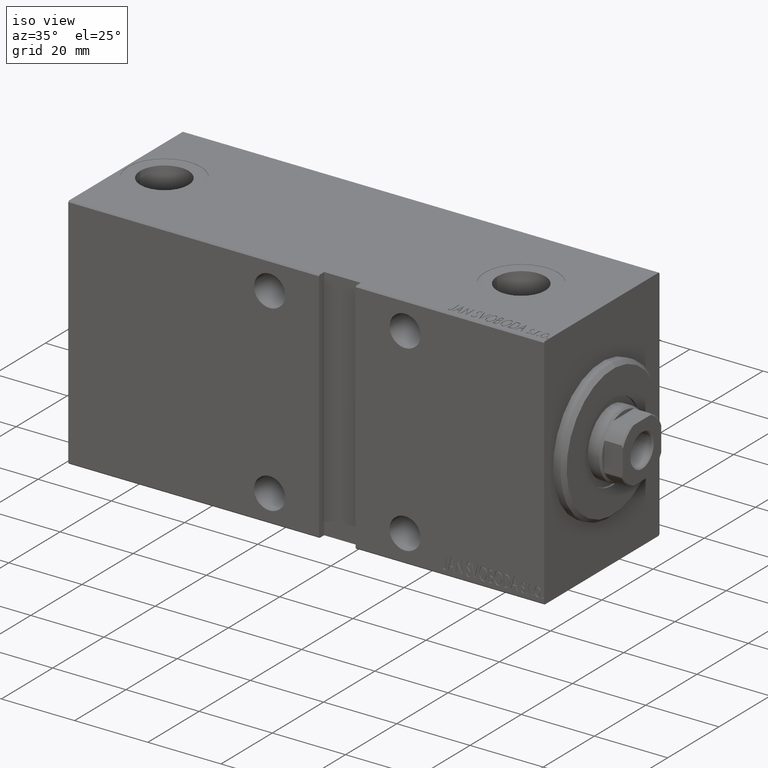
[diagram: clean part render]
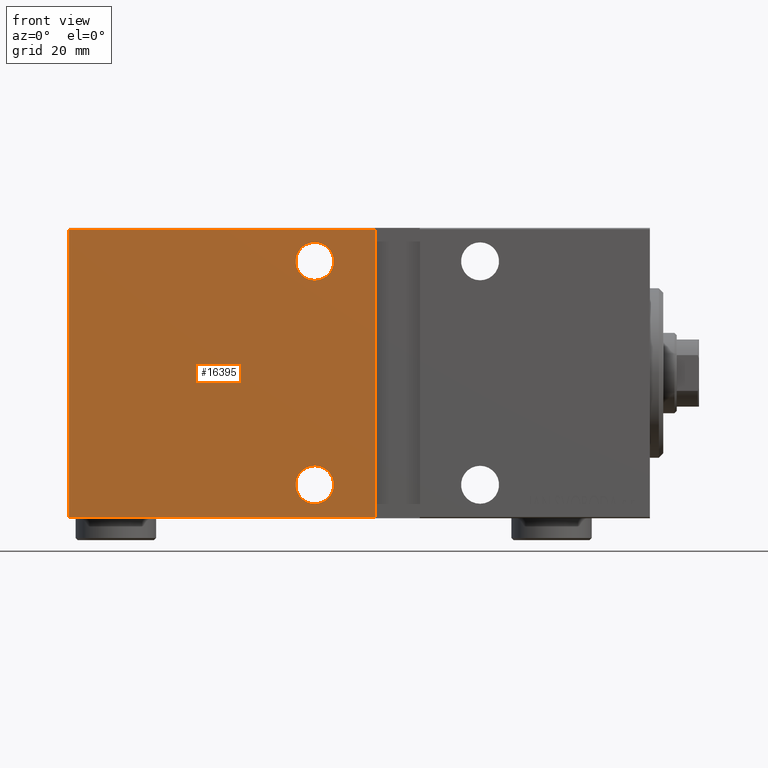
[diagram: tour spotlight — one face highlighted and labeled with its STEP entity id]
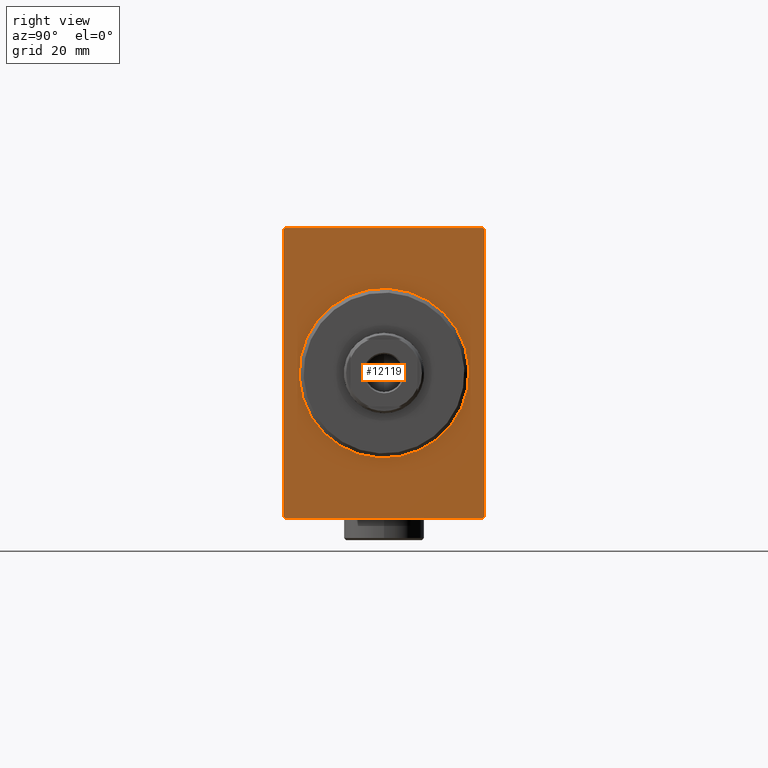
[diagram: tour spotlight — one face highlighted and labeled with its STEP entity id]
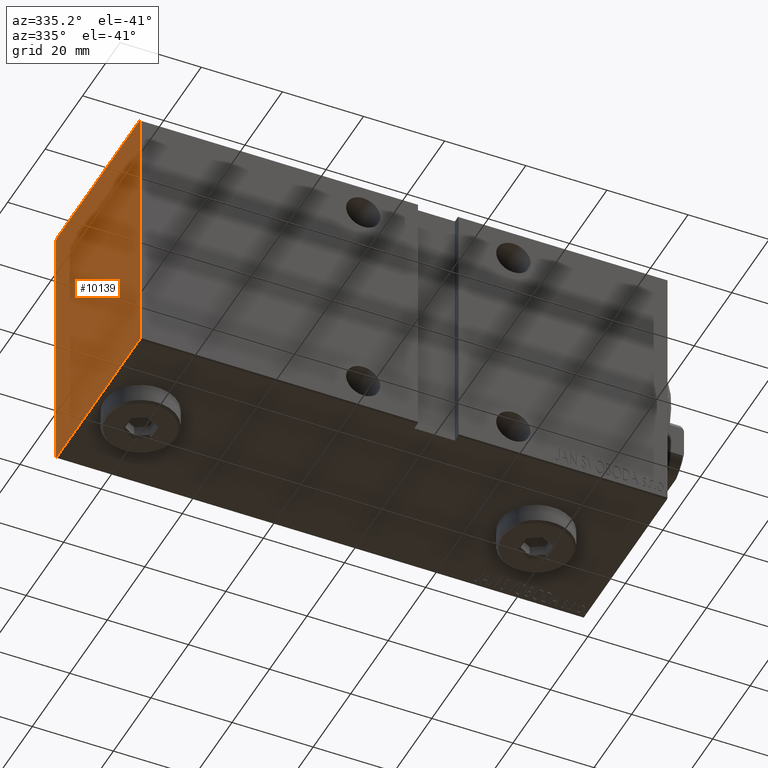
[diagram: tour spotlight — one face highlighted and labeled with its STEP entity id]
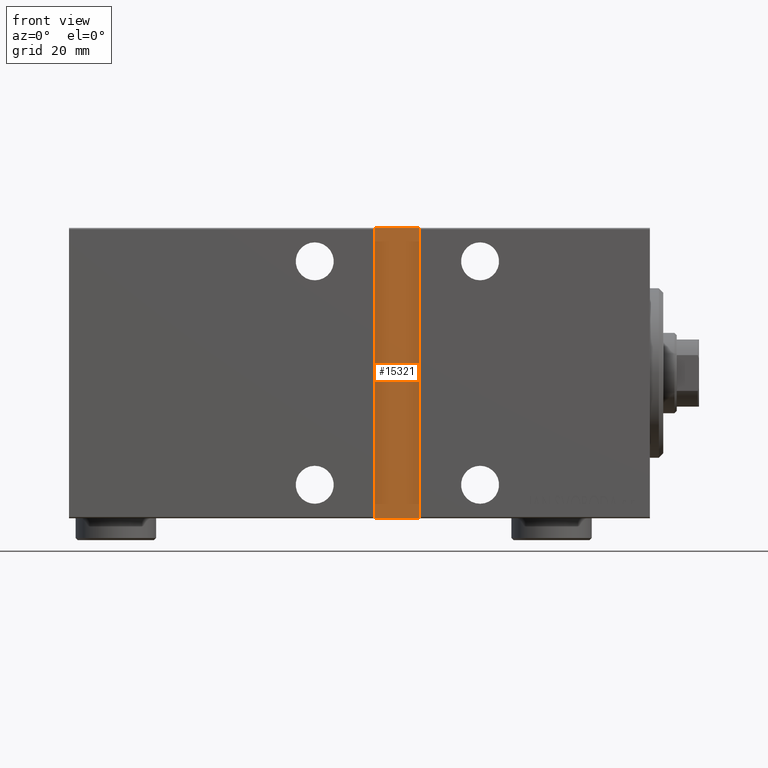
[diagram: tour spotlight — one face highlighted and labeled with its STEP entity id]
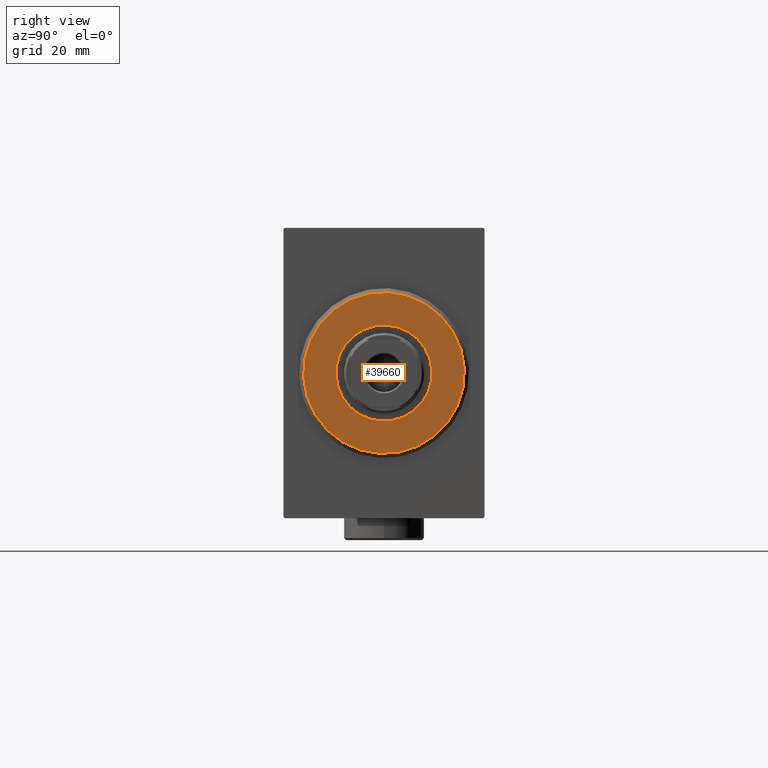
[diagram: tour spotlight — one face highlighted and labeled with its STEP entity id]
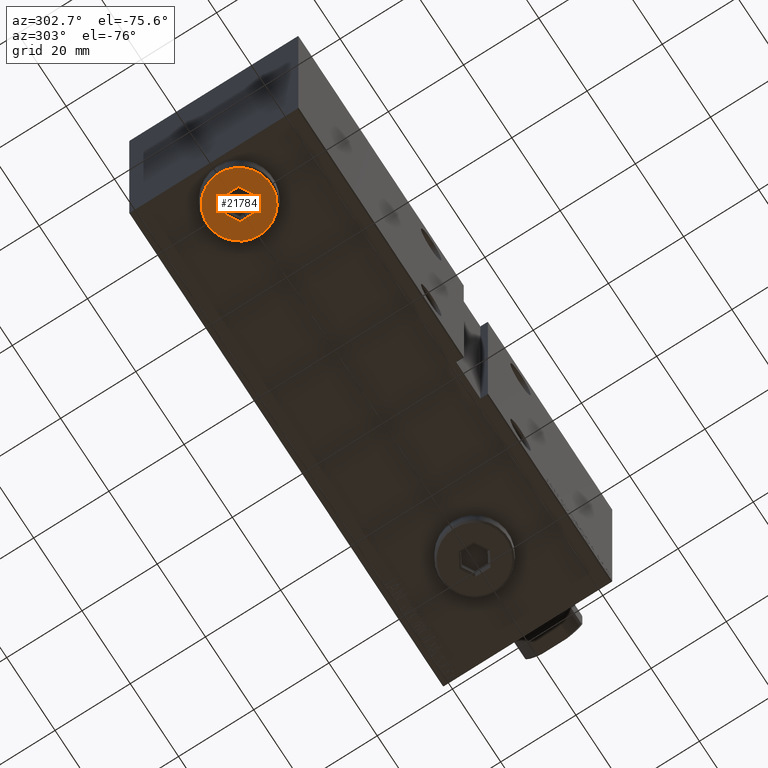
[diagram: tour spotlight — one face highlighted and labeled with its STEP entity id]
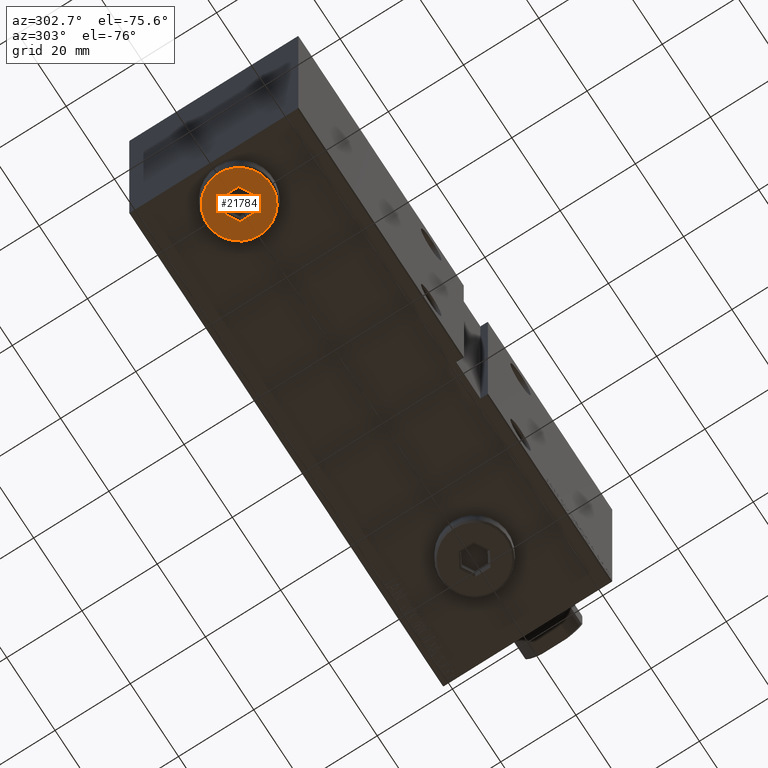
[diagram: tour spotlight — one face highlighted and labeled with its STEP entity id]
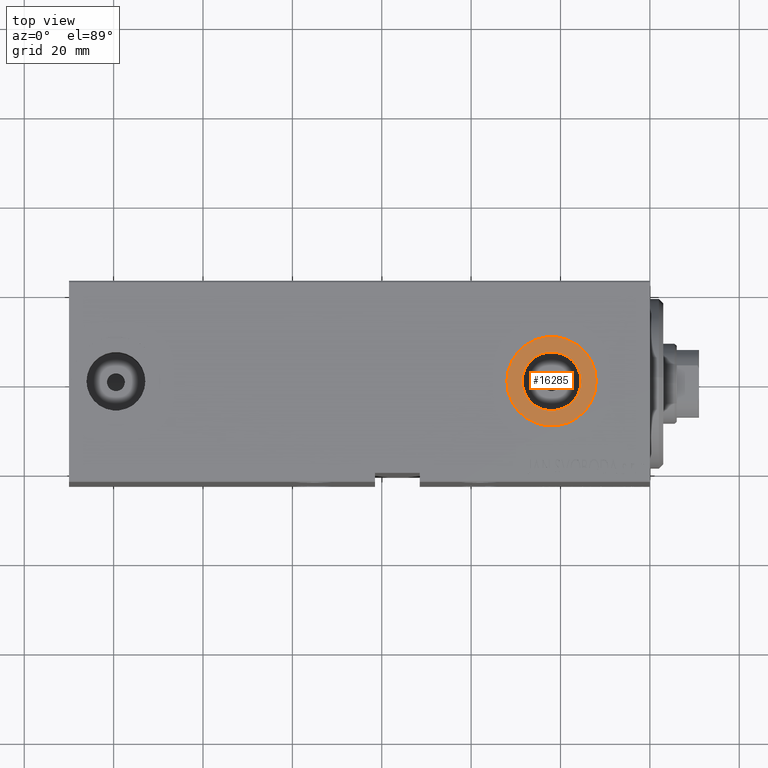
[diagram: tour spotlight — one face highlighted and labeled with its STEP entity id]
A machine part: a face-by-face anatomy tour. The part has 913 B-rep faces; the first image is the clean iso view, then the 8 largest visible faces are spotlighted one at a time (largest first), each with its STEP entity span.

Face 1 — front view, entity #16395. In plain terms, the highlighted planar face has unit normal (-0, 1, -0).
Definition (entity closure, byte-faithful):
#83 = CARTESIAN_POINT ( 'NONE',  ( 130.0000000000000000, 22.50000000000000355, -32.20000000000001705 ) ) ;
#612 = CIRCLE ( 'NONE', #3476, 4.250000000000003553 ) ;
#1452 = EDGE_CURVE ( 'NONE', #31479, #6767, #1817, .T. ) ;
#1590 = DIRECTION ( 'NONE',  ( 0.000000000000000000, 0.000000000000000000, 1.000000000000000000 ) ) ;
#1817 = CIRCLE ( 'NONE', #26244, 4.250000000000003553 ) ;
#3476 = AXIS2_PLACEMENT_3D ( 'NONE', #24102, #23879, #37849 ) ;
#4803 = FACE_OUTER_BOUND ( 'NONE', #42343, .T. ) ;
#5001 = ORIENTED_EDGE ( 'NONE', *, *, #15223, .F. ) ;
#5016 = ORIENTED_EDGE ( 'NONE', *, *, #43646, .F. ) ;
#5194 = DIRECTION ( 'NONE',  ( 0.000000000000000000, 1.000000000000000000, 0.000000000000000000 ) ) ;
#6767 = VERTEX_POINT ( 'NONE', #42816 ) ;
#7288 = CARTESIAN_POINT ( 'NONE',  ( 75.00000000000001421, 22.50000000000001776, -29.25000000000000355 ) ) ;
#7309 = VECTOR ( 'NONE', #13819, 1000.000000000000000 ) ;
#7614 = CARTESIAN_POINT ( 'NONE',  ( 61.50000000000000711, 22.50000000000000000, 32.50000000000000000 ) ) ;
#7961 = DIRECTION ( 'NONE',  ( 0.000000000000000000, 1.067522139062650425E-16, -1.000000000000000000 ) ) ;
#7971 = VERTEX_POINT ( 'NONE', #37566 ) ;
#8174 = FACE_BOUND ( 'NONE', #40664, .T. ) ;
#9719 = CARTESIAN_POINT ( 'NONE',  ( 130.0000000000000000, 22.49999999999999645, 32.20000000000003126 ) ) ;
#9900 = VERTEX_POINT ( 'NONE', #29959 ) ;
#10866 = ORIENTED_EDGE ( 'NONE', *, *, #28547, .F. ) ;
#11525 = VERTEX_POINT ( 'NONE', #42941 ) ;
#12212 = FACE_BOUND ( 'NONE', #25927, .T. ) ;
#12429 = ORIENTED_EDGE ( 'NONE', *, *, #42736, .F. ) ;
#12849 = CIRCLE ( 'NONE', #37287, 4.250000000000003553 ) ;
#13486 = CARTESIAN_POINT ( 'NONE',  ( 61.49999999999999289, 22.50000000000000000, -32.20000000000001705 ) ) ;
#13819 = DIRECTION ( 'NONE',  ( -1.000000000000000000, 0.000000000000000000, 0.000000000000000000 ) ) ;
#14960 = DIRECTION ( 'NONE',  ( 0.000000000000000000, 1.000000000000000000, 0.000000000000000000 ) ) ;
#14993 = CARTESIAN_POINT ( 'NONE',  ( 75.00000000000001421, 22.50000000000001776, 25.00000000000000000 ) ) ;
#15223 = EDGE_CURVE ( 'NONE', #7971, #40751, #38464, .T. ) ;
#15729 = EDGE_CURVE ( 'NONE', #16234, #40751, #17202, .T. ) ;
#15835 = DIRECTION ( 'NONE',  ( 0.000000000000000000, 0.000000000000000000, 1.000000000000000000 ) ) ;
#16234 = VERTEX_POINT ( 'NONE', #42906 ) ;
#16395 = ADVANCED_FACE ( 'NONE', ( #8174, #12212, #4803 ), #25083, .F. ) ;
#17202 = LINE ( 'NONE', #83, #7309 ) ;
#18144 = DIRECTION ( 'NONE',  ( 0.000000000000000000, 0.000000000000000000, 1.000000000000000000 ) ) ;
#18404 = ORIENTED_EDGE ( 'NONE', *, *, #1452, .F. ) ;
#18715 = LINE ( 'NONE', #25463, #28672 ) ;
#19358 = ORIENTED_EDGE ( 'NONE', *, *, #15729, .T. ) ;
#21140 = LINE ( 'NONE', #40735, #36587 ) ;
#21568 = DIRECTION ( 'NONE',  ( -2.135044278125300850E-16, 0.000000000000000000, -1.000000000000000000 ) ) ;
#23879 = DIRECTION ( 'NONE',  ( 0.000000000000000000, 1.000000000000000000, 0.000000000000000000 ) ) ;
#24102 = CARTESIAN_POINT ( 'NONE',  ( 75.00000000000001421, 22.50000000000001776, -25.00000000000000000 ) ) ;
#25083 = PLANE ( 'NONE',  #31062 ) ;
#25463 = CARTESIAN_POINT ( 'NONE',  ( 130.0000000000000000, 22.49999999999999645, 32.20000000000003126 ) ) ;
#25927 = EDGE_LOOP ( 'NONE', ( #10866, #5016 ) ) ;
#26244 = AXIS2_PLACEMENT_3D ( 'NONE', #32956, #14960, #15835 ) ;
#26711 = VECTOR ( 'NONE', #21568, 1000.000000000000000 ) ;
#27230 = DIRECTION ( 'NONE',  ( 0.000000000000000000, -1.067522139062650425E-16, 1.000000000000000000 ) ) ;
#28162 = VERTEX_POINT ( 'NONE', #9719 ) ;
#28547 = EDGE_CURVE ( 'NONE', #9900, #11525, #39182, .T. ) ;
#28672 = VECTOR ( 'NONE', #39202, 1000.000000000000000 ) ;
#28722 = DIRECTION ( 'NONE',  ( 0.000000000000000000, 1.000000000000000000, 0.000000000000000000 ) ) ;
#29959 = CARTESIAN_POINT ( 'NONE',  ( 75.00000000000001421, 22.50000000000001776, 29.25000000000000355 ) ) ;
#31062 = AXIS2_PLACEMENT_3D ( 'NONE', #38598, #42632, #7961 ) ;
#31479 = VERTEX_POINT ( 'NONE', #7288 ) ;
#32230 = CARTESIAN_POINT ( 'NONE',  ( 75.00000000000001421, 22.50000000000001776, 25.00000000000000000 ) ) ;
#32608 = ORIENTED_EDGE ( 'NONE', *, *, #43607, .T. ) ;
#32956 = CARTESIAN_POINT ( 'NONE',  ( 75.00000000000001421, 22.50000000000001776, -25.00000000000000000 ) ) ;
#35695 = ORIENTED_EDGE ( 'NONE', *, *, #38533, .F. ) ;
#36587 = VECTOR ( 'NONE', #27230, 1000.000000000000000 ) ;
#37287 = AXIS2_PLACEMENT_3D ( 'NONE', #32230, #5194, #1590 ) ;
#37566 = CARTESIAN_POINT ( 'NONE',  ( 61.50000000000000711, 22.50000000000000000, 32.20000000000003126 ) ) ;
#37849 = DIRECTION ( 'NONE',  ( 0.000000000000000000, 0.000000000000000000, 1.000000000000000000 ) ) ;
#38464 = LINE ( 'NONE', #7614, #26711 ) ;
#38533 = EDGE_CURVE ( 'NONE', #6767, #31479, #612, .T. ) ;
#38598 = CARTESIAN_POINT ( 'NONE',  ( 130.0000000000000000, 22.50000000000000355, -32.50000000000000000 ) ) ;
#39182 = CIRCLE ( 'NONE', #43493, 4.250000000000003553 ) ;
#39202 = DIRECTION ( 'NONE',  ( 1.000000000000000000, 0.000000000000000000, 0.000000000000000000 ) ) ;
#40664 = EDGE_LOOP ( 'NONE', ( #35695, #18404 ) ) ;
#40735 = CARTESIAN_POINT ( 'NONE',  ( 130.0000000000000000, 22.50000000000000355, -32.50000000000000000 ) ) ;
#40751 = VERTEX_POINT ( 'NONE', #13486 ) ;
#42343 = EDGE_LOOP ( 'NONE', ( #12429, #19358, #5001, #32608 ) ) ;
#42632 = DIRECTION ( 'NONE',  ( 0.000000000000000000, -1.000000000000000000, -1.067522139062650425E-16 ) ) ;
#42736 = EDGE_CURVE ( 'NONE', #16234, #28162, #21140, .T. ) ;
#42816 = CARTESIAN_POINT ( 'NONE',  ( 75.00000000000001421, 22.50000000000001776, -20.74999999999999645 ) ) ;
#42906 = CARTESIAN_POINT ( 'NONE',  ( 130.0000000000000000, 22.50000000000000355, -32.20000000000001705 ) ) ;
#42941 = CARTESIAN_POINT ( 'NONE',  ( 75.00000000000001421, 22.50000000000001776, 20.74999999999999645 ) ) ;
#43493 = AXIS2_PLACEMENT_3D ( 'NONE', #14993, #28722, #18144 ) ;
#43607 = EDGE_CURVE ( 'NONE', #7971, #28162, #18715, .T. ) ;
#43646 = EDGE_CURVE ( 'NONE', #11525, #9900, #12849, .T. ) ;

Face 2 — right view, entity #12119. In plain terms, the highlighted planar face has unit normal (-1, -0, 0).
Definition (entity closure, byte-faithful):
#298 = ORIENTED_EDGE ( 'NONE', *, *, #17772, .F. ) ;
#797 = EDGE_CURVE ( 'NONE', #17989, #43056, #7546, .T. ) ;
#2173 = CARTESIAN_POINT ( 'NONE',  ( 0.000000000000000000, -22.20000000000001350, -32.50000000000000000 ) ) ;
#3071 = ORIENTED_EDGE ( 'NONE', *, *, #23706, .F. ) ;
#4201 = CARTESIAN_POINT ( 'NONE',  ( 0.000000000000000000, 0.000000000000000000, 18.50000000000003197 ) ) ;
#4243 = PLANE ( 'NONE',  #9509 ) ;
#4566 = VECTOR ( 'NONE', #9410, 1000.000000000000000 ) ;
#5242 = DIRECTION ( 'NONE',  ( 1.000000000000000000, 0.000000000000000000, 0.000000000000000000 ) ) ;
#5888 = AXIS2_PLACEMENT_3D ( 'NONE', #22135, #5242, #35884 ) ;
#6818 = VERTEX_POINT ( 'NONE', #26141 ) ;
#6964 = CARTESIAN_POINT ( 'NONE',  ( 0.000000000000000000, -22.49999999999999645, 32.50000000000000000 ) ) ;
#7546 = CIRCLE ( 'NONE', #44207, 18.50000000000003197 ) ;
#7691 = LINE ( 'NONE', #28394, #20572 ) ;
#8300 = EDGE_CURVE ( 'NONE', #35912, #25186, #44263, .T. ) ;
#8322 = VECTOR ( 'NONE', #30978, 1000.000000000000000 ) ;
#8458 = CARTESIAN_POINT ( 'NONE',  ( 0.000000000000000000, -22.19999999999999929, 32.50000000000000000 ) ) ;
#9410 = DIRECTION ( 'NONE',  ( -0.000000000000000000, 0.7071067811865556774, -0.7071067811865393571 ) ) ;
#9509 = AXIS2_PLACEMENT_3D ( 'NONE', #27888, #10772, #14371 ) ;
#10042 = DIRECTION ( 'NONE',  ( 0.000000000000000000, -1.067522139062650425E-16, 1.000000000000000000 ) ) ;
#10097 = VERTEX_POINT ( 'NONE', #42538 ) ;
#10341 = CARTESIAN_POINT ( 'NONE',  ( 0.000000000000000000, 22.50000000000000355, -32.20000000000001705 ) ) ;
#10573 = LINE ( 'NONE', #31516, #39727 ) ;
#10772 = DIRECTION ( 'NONE',  ( 1.000000000000000000, 0.000000000000000000, 0.000000000000000000 ) ) ;
#11626 = EDGE_CURVE ( 'NONE', #26695, #10097, #19298, .T. ) ;
#12119 = ADVANCED_FACE ( 'NONE', ( #24726, #31495 ), #4243, .F. ) ;
#14371 = DIRECTION ( 'NONE',  ( 0.000000000000000000, 0.000000000000000000, -1.000000000000000000 ) ) ;
#16190 = VERTEX_POINT ( 'NONE', #8458 ) ;
#16256 = CARTESIAN_POINT ( 'NONE',  ( 0.000000000000000000, -22.20000000000001350, -32.50000000000000000 ) ) ;
#16381 = EDGE_CURVE ( 'NONE', #43056, #17989, #25309, .T. ) ;
#16948 = EDGE_LOOP ( 'NONE', ( #32484, #24397, #28806, #41770, #298, #31925, #3071, #17559 ) ) ;
#17559 = ORIENTED_EDGE ( 'NONE', *, *, #32503, .T. ) ;
#17597 = VECTOR ( 'NONE', #27449, 1000.000000000000114 ) ;
#17772 = EDGE_CURVE ( 'NONE', #26695, #38344, #10573, .T. ) ;
#17944 = CARTESIAN_POINT ( 'NONE',  ( 0.000000000000000000, 2.265596578422607341E-15, -18.50000000000003197 ) ) ;
#17989 = VERTEX_POINT ( 'NONE', #17944 ) ;
#18292 = CARTESIAN_POINT ( 'NONE',  ( 0.000000000000000000, 22.20000000000000639, -32.50000000000000000 ) ) ;
#19298 = LINE ( 'NONE', #2173, #24255 ) ;
#19333 = DIRECTION ( 'NONE',  ( 0.000000000000000000, 0.000000000000000000, -1.000000000000000000 ) ) ;
#19514 = DIRECTION ( 'NONE',  ( -0.000000000000000000, -0.7071067811865474617, 0.7071067811865474617 ) ) ;
#19547 = CARTESIAN_POINT ( 'NONE',  ( 0.000000000000000000, 22.20000000000001350, 32.50000000000000711 ) ) ;
#19579 = ORIENTED_EDGE ( 'NONE', *, *, #797, .T. ) ;
#20572 = VECTOR ( 'NONE', #35372, 1000.000000000000114 ) ;
#22135 = CARTESIAN_POINT ( 'NONE',  ( 0.000000000000000000, 0.000000000000000000, 0.000000000000000000 ) ) ;
#23706 = EDGE_CURVE ( 'NONE', #6818, #10097, #37370, .T. ) ;
#23755 = EDGE_CURVE ( 'NONE', #35912, #38344, #34436, .T. ) ;
#24255 = VECTOR ( 'NONE', #19514, 1000.000000000000114 ) ;
#24397 = ORIENTED_EDGE ( 'NONE', *, *, #24584, .T. ) ;
#24584 = EDGE_CURVE ( 'NONE', #37846, #25186, #30116, .T. ) ;
#24726 = FACE_BOUND ( 'NONE', #28166, .T. ) ;
#24908 = DIRECTION ( 'NONE',  ( 0.000000000000000000, 0.000000000000000000, -1.000000000000000000 ) ) ;
#25186 = VERTEX_POINT ( 'NONE', #32581 ) ;
#25309 = CIRCLE ( 'NONE', #5888, 18.50000000000003197 ) ;
#26141 = CARTESIAN_POINT ( 'NONE',  ( 0.000000000000000000, -22.49999999999999645, 32.20000000000001705 ) ) ;
#26695 = VERTEX_POINT ( 'NONE', #16256 ) ;
#27155 = CARTESIAN_POINT ( 'NONE',  ( 0.000000000000000000, 22.50000000000000355, -32.50000000000000000 ) ) ;
#27449 = DIRECTION ( 'NONE',  ( 0.000000000000000000, -0.7071067811865474617, -0.7071067811865474617 ) ) ;
#27888 = CARTESIAN_POINT ( 'NONE',  ( 0.000000000000000000, 0.000000000000000000, 0.000000000000000000 ) ) ;
#28166 = EDGE_LOOP ( 'NONE', ( #31023, #19579 ) ) ;
#28394 = CARTESIAN_POINT ( 'NONE',  ( 0.000000000000000000, -22.49999999999999645, 32.20000000000001705 ) ) ;
#28806 = ORIENTED_EDGE ( 'NONE', *, *, #8300, .F. ) ;
#29009 = CARTESIAN_POINT ( 'NONE',  ( 0.000000000000000000, 0.000000000000000000, 0.000000000000000000 ) ) ;
#29454 = DIRECTION ( 'NONE',  ( 1.000000000000000000, 0.000000000000000000, 0.000000000000000000 ) ) ;
#30116 = LINE ( 'NONE', #19547, #4566 ) ;
#30502 = EDGE_CURVE ( 'NONE', #37846, #16190, #34122, .T. ) ;
#30978 = DIRECTION ( 'NONE',  ( 0.000000000000000000, -1.000000000000000000, -1.541976423090495633E-16 ) ) ;
#31023 = ORIENTED_EDGE ( 'NONE', *, *, #16381, .T. ) ;
#31282 = DIRECTION ( 'NONE',  ( 0.000000000000000000, 1.000000000000000000, 0.000000000000000000 ) ) ;
#31495 = FACE_OUTER_BOUND ( 'NONE', #16948, .T. ) ;
#31516 = CARTESIAN_POINT ( 'NONE',  ( 0.000000000000000000, -22.49999999999999645, -32.50000000000000000 ) ) ;
#31925 = ORIENTED_EDGE ( 'NONE', *, *, #11626, .T. ) ;
#32072 = VECTOR ( 'NONE', #10042, 1000.000000000000000 ) ;
#32484 = ORIENTED_EDGE ( 'NONE', *, *, #30502, .F. ) ;
#32503 = EDGE_CURVE ( 'NONE', #6818, #16190, #7691, .T. ) ;
#32581 = CARTESIAN_POINT ( 'NONE',  ( 0.000000000000000000, 22.49999999999999645, 32.20000000000003126 ) ) ;
#33402 = VECTOR ( 'NONE', #24908, 1000.000000000000000 ) ;
#34060 = CARTESIAN_POINT ( 'NONE',  ( 0.000000000000000000, 22.20000000000001350, 32.50000000000000711 ) ) ;
#34122 = LINE ( 'NONE', #41099, #8322 ) ;
#34436 = LINE ( 'NONE', #10341, #17597 ) ;
#35372 = DIRECTION ( 'NONE',  ( -0.000000000000000000, 0.7071067811865474617, 0.7071067811865474617 ) ) ;
#35884 = DIRECTION ( 'NONE',  ( 0.000000000000000000, 0.000000000000000000, -1.000000000000000000 ) ) ;
#35912 = VERTEX_POINT ( 'NONE', #41481 ) ;
#37370 = LINE ( 'NONE', #6964, #33402 ) ;
#37846 = VERTEX_POINT ( 'NONE', #34060 ) ;
#38344 = VERTEX_POINT ( 'NONE', #18292 ) ;
#39727 = VECTOR ( 'NONE', #31282, 1000.000000000000000 ) ;
#41099 = CARTESIAN_POINT ( 'NONE',  ( 0.000000000000000000, 22.49999999999999645, 32.50000000000000711 ) ) ;
#41481 = CARTESIAN_POINT ( 'NONE',  ( 0.000000000000000000, 22.50000000000000355, -32.20000000000001705 ) ) ;
#41770 = ORIENTED_EDGE ( 'NONE', *, *, #23755, .T. ) ;
#42538 = CARTESIAN_POINT ( 'NONE',  ( 0.000000000000000000, -22.49999999999999645, -32.20000000000001705 ) ) ;
#43056 = VERTEX_POINT ( 'NONE', #4201 ) ;
#44207 = AXIS2_PLACEMENT_3D ( 'NONE', #29009, #29454, #19333 ) ;
#44263 = LINE ( 'NONE', #27155, #32072 ) ;

Face 3 — auxiliary view, entity #10139. In plain terms, the highlighted planar face has unit normal (-1, -0, 0).
Definition (entity closure, byte-faithful):
#888 = PLANE ( 'NONE',  #25658 ) ;
#1540 = EDGE_CURVE ( 'NONE', #37963, #43378, #24812, .T. ) ;
#2503 = ORIENTED_EDGE ( 'NONE', *, *, #12519, .T. ) ;
#4048 = ORIENTED_EDGE ( 'NONE', *, *, #23070, .T. ) ;
#4273 = DIRECTION ( 'NONE',  ( 0.000000000000000000, 0.000000000000000000, -1.000000000000000000 ) ) ;
#4570 = ORIENTED_EDGE ( 'NONE', *, *, #42736, .T. ) ;
#4716 = DIRECTION ( 'NONE',  ( -0.000000000000000000, 0.7071067811865474617, 0.7071067811865474617 ) ) ;
#7750 = CARTESIAN_POINT ( 'NONE',  ( 130.0000000000000000, -22.19999999999999929, 32.50000000000000000 ) ) ;
#8004 = DIRECTION ( 'NONE',  ( -0.000000000000000000, -0.7071067811865556774, 0.7071067811865393571 ) ) ;
#9016 = CARTESIAN_POINT ( 'NONE',  ( 130.0000000000000000, -22.49999999999999645, -32.20000000000001705 ) ) ;
#9342 = CARTESIAN_POINT ( 'NONE',  ( 130.0000000000000000, -22.49999999999999645, -32.50000000000000000 ) ) ;
#9401 = VECTOR ( 'NONE', #8004, 1000.000000000000000 ) ;
#9493 = EDGE_CURVE ( 'NONE', #21166, #24423, #37954, .T. ) ;
#9719 = CARTESIAN_POINT ( 'NONE',  ( 130.0000000000000000, 22.49999999999999645, 32.20000000000003126 ) ) ;
#10139 = ADVANCED_FACE ( 'NONE', ( #35790 ), #888, .T. ) ;
#11824 = LINE ( 'NONE', #28499, #9401 ) ;
#11941 = LINE ( 'NONE', #38976, #30335 ) ;
#12330 = LINE ( 'NONE', #42745, #14050 ) ;
#12519 = EDGE_CURVE ( 'NONE', #28162, #37963, #11824, .T. ) ;
#14050 = VECTOR ( 'NONE', #43639, 1000.000000000000114 ) ;
#16234 = VERTEX_POINT ( 'NONE', #42906 ) ;
#16673 = EDGE_CURVE ( 'NONE', #24423, #26728, #11941, .T. ) ;
#17392 = CARTESIAN_POINT ( 'NONE',  ( 130.0000000000000000, 22.49999999999999645, 32.50000000000000711 ) ) ;
#18578 = ORIENTED_EDGE ( 'NONE', *, *, #9493, .T. ) ;
#19124 = VERTEX_POINT ( 'NONE', #43362 ) ;
#21140 = LINE ( 'NONE', #40735, #36587 ) ;
#21166 = VERTEX_POINT ( 'NONE', #23200 ) ;
#23070 = EDGE_CURVE ( 'NONE', #26728, #19124, #37472, .T. ) ;
#23200 = CARTESIAN_POINT ( 'NONE',  ( 130.0000000000000000, -22.49999999999999645, 32.20000000000001705 ) ) ;
#24042 = VECTOR ( 'NONE', #40618, 1000.000000000000000 ) ;
#24374 = DIRECTION ( 'NONE',  ( 0.000000000000000000, -1.000000000000000000, -1.541976423090495633E-16 ) ) ;
#24423 = VERTEX_POINT ( 'NONE', #9016 ) ;
#24540 = ORIENTED_EDGE ( 'NONE', *, *, #36997, .T. ) ;
#24812 = LINE ( 'NONE', #17392, #42100 ) ;
#24993 = CARTESIAN_POINT ( 'NONE',  ( 130.0000000000000000, 27.35000000000000853, -27.35000000000000853 ) ) ;
#25455 = DIRECTION ( 'NONE',  ( -0.000000000000000000, 0.7071067811865474617, -0.7071067811865474617 ) ) ;
#25658 = AXIS2_PLACEMENT_3D ( 'NONE', #31963, #36006, #4273 ) ;
#26338 = VECTOR ( 'NONE', #36120, 1000.000000000000000 ) ;
#26455 = VECTOR ( 'NONE', #4716, 1000.000000000000114 ) ;
#26728 = VERTEX_POINT ( 'NONE', #41451 ) ;
#27230 = DIRECTION ( 'NONE',  ( 0.000000000000000000, -1.067522139062650425E-16, 1.000000000000000000 ) ) ;
#28162 = VERTEX_POINT ( 'NONE', #9719 ) ;
#28499 = CARTESIAN_POINT ( 'NONE',  ( 130.0000000000000000, 27.34999999999975273, 27.35000000000038511 ) ) ;
#29128 = CARTESIAN_POINT ( 'NONE',  ( 130.0000000000000000, -22.49999999999999645, 32.50000000000000000 ) ) ;
#30070 = EDGE_CURVE ( 'NONE', #43378, #21166, #12330, .T. ) ;
#30335 = VECTOR ( 'NONE', #25455, 1000.000000000000114 ) ;
#31424 = ORIENTED_EDGE ( 'NONE', *, *, #1540, .T. ) ;
#31963 = CARTESIAN_POINT ( 'NONE',  ( 130.0000000000000000, 0.000000000000000000, 0.000000000000000000 ) ) ;
#34517 = CARTESIAN_POINT ( 'NONE',  ( 130.0000000000000000, 22.20000000000001350, 32.50000000000000711 ) ) ;
#35125 = LINE ( 'NONE', #24993, #26455 ) ;
#35790 = FACE_OUTER_BOUND ( 'NONE', #36978, .T. ) ;
#36006 = DIRECTION ( 'NONE',  ( 1.000000000000000000, 0.000000000000000000, 0.000000000000000000 ) ) ;
#36120 = DIRECTION ( 'NONE',  ( 0.000000000000000000, 0.000000000000000000, -1.000000000000000000 ) ) ;
#36231 = ORIENTED_EDGE ( 'NONE', *, *, #30070, .T. ) ;
#36587 = VECTOR ( 'NONE', #27230, 1000.000000000000000 ) ;
#36978 = EDGE_LOOP ( 'NONE', ( #4048, #24540, #4570, #2503, #31424, #36231, #18578, #38801 ) ) ;
#36997 = EDGE_CURVE ( 'NONE', #19124, #16234, #35125, .T. ) ;
#37472 = LINE ( 'NONE', #9342, #24042 ) ;
#37954 = LINE ( 'NONE', #29128, #26338 ) ;
#37963 = VERTEX_POINT ( 'NONE', #34517 ) ;
#38801 = ORIENTED_EDGE ( 'NONE', *, *, #16673, .T. ) ;
#38976 = CARTESIAN_POINT ( 'NONE',  ( 130.0000000000000000, -27.35000000000000497, -27.35000000000000497 ) ) ;
#40618 = DIRECTION ( 'NONE',  ( 0.000000000000000000, 1.000000000000000000, 0.000000000000000000 ) ) ;
#40735 = CARTESIAN_POINT ( 'NONE',  ( 130.0000000000000000, 22.50000000000000355, -32.50000000000000000 ) ) ;
#41451 = CARTESIAN_POINT ( 'NONE',  ( 130.0000000000000000, -22.20000000000001350, -32.50000000000000000 ) ) ;
#42100 = VECTOR ( 'NONE', #24374, 1000.000000000000000 ) ;
#42736 = EDGE_CURVE ( 'NONE', #16234, #28162, #21140, .T. ) ;
#42745 = CARTESIAN_POINT ( 'NONE',  ( 130.0000000000000000, -27.35000000000000497, 27.35000000000000497 ) ) ;
#42906 = CARTESIAN_POINT ( 'NONE',  ( 130.0000000000000000, 22.50000000000000355, -32.20000000000001705 ) ) ;
#43362 = CARTESIAN_POINT ( 'NONE',  ( 130.0000000000000000, 22.20000000000000639, -32.50000000000000000 ) ) ;
#43378 = VERTEX_POINT ( 'NONE', #7750 ) ;
#43639 = DIRECTION ( 'NONE',  ( 0.000000000000000000, -0.7071067811865474617, -0.7071067811865474617 ) ) ;

Face 4 — front view, entity #15321. In plain terms, the highlighted planar face has unit normal (0, -1, -0).
Definition (entity closure, byte-faithful):
#971 = VERTEX_POINT ( 'NONE', #34827 ) ;
#3571 = CARTESIAN_POINT ( 'NONE',  ( 51.50000000000001421, 20.49999999999999645, 32.50000000000000000 ) ) ;
#4962 = VERTEX_POINT ( 'NONE', #33948 ) ;
#5213 = VERTEX_POINT ( 'NONE', #33637 ) ;
#5670 = EDGE_CURVE ( 'NONE', #13743, #5213, #9936, .T. ) ;
#8307 = LINE ( 'NONE', #22042, #9119 ) ;
#9119 = VECTOR ( 'NONE', #18889, 1000.000000000000000 ) ;
#9143 = DIRECTION ( 'NONE',  ( 0.000000000000000000, 0.000000000000000000, -1.000000000000000000 ) ) ;
#9936 = LINE ( 'NONE', #41669, #12578 ) ;
#10135 = EDGE_CURVE ( 'NONE', #4962, #5213, #8307, .T. ) ;
#12578 = VECTOR ( 'NONE', #31545, 1000.000000000000000 ) ;
#13743 = VERTEX_POINT ( 'NONE', #28834 ) ;
#13982 = ORIENTED_EDGE ( 'NONE', *, *, #18269, .F. ) ;
#14584 = DIRECTION ( 'NONE',  ( 1.000000000000000000, 0.000000000000000000, 0.000000000000000000 ) ) ;
#14811 = LINE ( 'NONE', #3571, #24008 ) ;
#15321 = ADVANCED_FACE ( 'NONE', ( #19526 ), #43833, .T. ) ;
#18269 = EDGE_CURVE ( 'NONE', #971, #4962, #43356, .T. ) ;
#18889 = DIRECTION ( 'NONE',  ( 1.000000000000000000, 0.000000000000000000, 0.000000000000000000 ) ) ;
#19526 = FACE_OUTER_BOUND ( 'NONE', #25063, .T. ) ;
#21767 = VECTOR ( 'NONE', #9143, 1000.000000000000000 ) ;
#22042 = CARTESIAN_POINT ( 'NONE',  ( 51.50000000000001421, 20.49999999999999645, -32.50000000000000000 ) ) ;
#23709 = ORIENTED_EDGE ( 'NONE', *, *, #10135, .F. ) ;
#24008 = VECTOR ( 'NONE', #14584, 1000.000000000000000 ) ;
#25063 = EDGE_LOOP ( 'NONE', ( #23709, #13982, #27643, #34407 ) ) ;
#25881 = EDGE_CURVE ( 'NONE', #971, #13743, #14811, .T. ) ;
#27643 = ORIENTED_EDGE ( 'NONE', *, *, #25881, .T. ) ;
#28834 = CARTESIAN_POINT ( 'NONE',  ( 61.50000000000000711, 20.49999999999999645, 32.50000000000000000 ) ) ;
#31545 = DIRECTION ( 'NONE',  ( -2.135044278125300850E-16, 0.000000000000000000, -1.000000000000000000 ) ) ;
#33637 = CARTESIAN_POINT ( 'NONE',  ( 61.50000000000000000, 20.50000000000000000, -32.50000000000000000 ) ) ;
#33948 = CARTESIAN_POINT ( 'NONE',  ( 51.50000000000001421, 20.49999999999999645, -32.50000000000000000 ) ) ;
#34407 = ORIENTED_EDGE ( 'NONE', *, *, #5670, .T. ) ;
#34827 = CARTESIAN_POINT ( 'NONE',  ( 51.50000000000001421, 20.49999999999999645, 32.50000000000000000 ) ) ;
#36647 = CARTESIAN_POINT ( 'NONE',  ( 0.000000000000000000, 20.49999999999999645, 0.000000000000000000 ) ) ;
#39978 = CARTESIAN_POINT ( 'NONE',  ( 51.50000000000001421, 20.49999999999999645, 32.50000000000000000 ) ) ;
#40366 = AXIS2_PLACEMENT_3D ( 'NONE', #36647, #40665, #43618 ) ;
#40665 = DIRECTION ( 'NONE',  ( -0.000000000000000000, 1.000000000000000000, 0.000000000000000000 ) ) ;
#41669 = CARTESIAN_POINT ( 'NONE',  ( 61.50000000000000711, 20.49999999999999645, 32.50000000000000000 ) ) ;
#43356 = LINE ( 'NONE', #39978, #21767 ) ;
#43618 = DIRECTION ( 'NONE',  ( 0.000000000000000000, -0.000000000000000000, 1.000000000000000000 ) ) ;
#43833 = PLANE ( 'NONE',  #40366 ) ;

Face 5 — right view, entity #39660. In plain terms, the highlighted planar face has unit normal (1, -0, -0).
Definition (entity closure, byte-faithful):
#4525 = DIRECTION ( 'NONE',  ( 0.000000000000000000, 0.000000000000000000, -1.000000000000000000 ) ) ;
#5225 = VERTEX_POINT ( 'NONE', #8876 ) ;
#5617 = FACE_OUTER_BOUND ( 'NONE', #19636, .T. ) ;
#6125 = EDGE_CURVE ( 'NONE', #24101, #15860, #42799, .T. ) ;
#8876 = CARTESIAN_POINT ( 'NONE',  ( 3.000000000000000000, 1.316495309083404618E-15, 10.75000000000000000 ) ) ;
#9439 = CARTESIAN_POINT ( 'NONE',  ( 3.000000000000000000, 0.000000000000000000, 0.000000000000000000 ) ) ;
#10613 = DIRECTION ( 'NONE',  ( 1.000000000000000000, 0.000000000000000000, 0.000000000000000000 ) ) ;
#11724 = DIRECTION ( 'NONE',  ( 1.000000000000000000, -0.000000000000000000, 0.000000000000000000 ) ) ;
#11923 = DIRECTION ( 'NONE',  ( 0.000000000000000000, 0.000000000000000000, -1.000000000000000000 ) ) ;
#13024 = FACE_BOUND ( 'NONE', #26010, .T. ) ;
#13474 = VERTEX_POINT ( 'NONE', #27792 ) ;
#13981 = CARTESIAN_POINT ( 'NONE',  ( 3.000000000000000000, 0.000000000000000000, 0.000000000000000000 ) ) ;
#15036 = EDGE_CURVE ( 'NONE', #5225, #13474, #28873, .T. ) ;
#15085 = CARTESIAN_POINT ( 'NONE',  ( 3.000000000000000000, 0.000000000000000000, 0.000000000000000000 ) ) ;
#15131 = ORIENTED_EDGE ( 'NONE', *, *, #32517, .T. ) ;
#15860 = VERTEX_POINT ( 'NONE', #18540 ) ;
#18540 = CARTESIAN_POINT ( 'NONE',  ( 3.000000000000000000, 2.265596578422603002E-15, -17.99999999999999645 ) ) ;
#19577 = DIRECTION ( 'NONE',  ( 1.000000000000000000, -0.000000000000000000, 0.000000000000000000 ) ) ;
#19636 = EDGE_LOOP ( 'NONE', ( #31143, #15131 ) ) ;
#21707 = AXIS2_PLACEMENT_3D ( 'NONE', #15085, #35804, #11923 ) ;
#22140 = CARTESIAN_POINT ( 'NONE',  ( 3.000000000000000000, 0.000000000000000000, 17.99999999999999645 ) ) ;
#23381 = AXIS2_PLACEMENT_3D ( 'NONE', #42489, #31687, #35505 ) ;
#24101 = VERTEX_POINT ( 'NONE', #22140 ) ;
#24796 = CARTESIAN_POINT ( 'NONE',  ( 3.000000000000000000, 0.000000000000000000, 0.000000000000000000 ) ) ;
#26010 = EDGE_LOOP ( 'NONE', ( #27033, #39220 ) ) ;
#26760 = EDGE_CURVE ( 'NONE', #13474, #5225, #36263, .T. ) ;
#26899 = AXIS2_PLACEMENT_3D ( 'NONE', #13981, #10613, #37632 ) ;
#27033 = ORIENTED_EDGE ( 'NONE', *, *, #26760, .F. ) ;
#27792 = CARTESIAN_POINT ( 'NONE',  ( 3.000000000000000000, 0.000000000000000000, -10.75000000000000000 ) ) ;
#28873 = CIRCLE ( 'NONE', #21707, 10.75000000000000000 ) ;
#31143 = ORIENTED_EDGE ( 'NONE', *, *, #6125, .T. ) ;
#31687 = DIRECTION ( 'NONE',  ( 1.000000000000000000, -0.000000000000000000, 0.000000000000000000 ) ) ;
#32517 = EDGE_CURVE ( 'NONE', #15860, #24101, #42149, .T. ) ;
#33088 = PLANE ( 'NONE',  #33620 ) ;
#33620 = AXIS2_PLACEMENT_3D ( 'NONE', #9439, #19577, #40720 ) ;
#35505 = DIRECTION ( 'NONE',  ( 0.000000000000000000, 0.000000000000000000, -1.000000000000000000 ) ) ;
#35804 = DIRECTION ( 'NONE',  ( 1.000000000000000000, 0.000000000000000000, 0.000000000000000000 ) ) ;
#36263 = CIRCLE ( 'NONE', #26899, 10.75000000000000000 ) ;
#37632 = DIRECTION ( 'NONE',  ( 0.000000000000000000, 0.000000000000000000, -1.000000000000000000 ) ) ;
#38551 = AXIS2_PLACEMENT_3D ( 'NONE', #24796, #11724, #4525 ) ;
#39220 = ORIENTED_EDGE ( 'NONE', *, *, #15036, .F. ) ;
#39660 = ADVANCED_FACE ( 'NONE', ( #5617, #13024 ), #33088, .T. ) ;
#40720 = DIRECTION ( 'NONE',  ( 0.000000000000000000, 0.000000000000000000, -1.000000000000000000 ) ) ;
#42149 = CIRCLE ( 'NONE', #38551, 17.99999999999999645 ) ;
#42489 = CARTESIAN_POINT ( 'NONE',  ( 3.000000000000000000, 0.000000000000000000, 0.000000000000000000 ) ) ;
#42799 = CIRCLE ( 'NONE', #23381, 17.99999999999999645 ) ;

Face 6 — auxiliary view, entity #21784. In plain terms, the highlighted planar face has unit normal (-0, 0, -1).
Definition (entity closure, byte-faithful):
#72 = VERTEX_POINT ( 'NONE', #32166 ) ;
#168 = VERTEX_POINT ( 'NONE', #30319 ) ;
#502 = AXIS2_PLACEMENT_3D ( 'NONE', #17631, #35183, #24384 ) ;
#966 = VERTEX_POINT ( 'NONE', #28740 ) ;
#1141 = EDGE_LOOP ( 'NONE', ( #23917, #21670 ) ) ;
#1443 = CARTESIAN_POINT ( 'NONE',  ( 0.000000000000000000, 0.000000000000000000, 5.000000000000000000 ) ) ;
#1648 = LINE ( 'NONE', #22141, #26512 ) ;
#2742 = EDGE_CURVE ( 'NONE', #168, #31415, #22941, .T. ) ;
#4538 = CIRCLE ( 'NONE', #37613, 8.500000000000010658 ) ;
#4599 = DIRECTION ( 'NONE',  ( 0.000000000000000000, 0.000000000000000000, 1.000000000000000000 ) ) ;
#5697 = DIRECTION ( 'NONE',  ( -0.8660254037844387076, -0.4999999999999998890, 0.000000000000000000 ) ) ;
#6257 = DIRECTION ( 'NONE',  ( 0.000000000000000000, -1.000000000000000000, 0.000000000000000000 ) ) ;
#7294 = EDGE_CURVE ( 'NONE', #40561, #168, #34173, .T. ) ;
#8978 = CARTESIAN_POINT ( 'NONE',  ( 3.500000000000006661, -1.732050807568878303, 5.000000000000000000 ) ) ;
#9643 = CARTESIAN_POINT ( 'NONE',  ( 3.250000000000003109, 2.165063509461103042, 5.000000000000000000 ) ) ;
#10477 = VECTOR ( 'NONE', #6257, 1000.000000000000000 ) ;
#10721 = EDGE_CURVE ( 'NONE', #72, #966, #40030, .T. ) ;
#11399 = DIRECTION ( 'NONE',  ( 0.000000000000000000, 1.000000000000000000, 0.000000000000000000 ) ) ;
#13233 = EDGE_CURVE ( 'NONE', #41663, #38310, #28945, .T. ) ;
#14207 = CARTESIAN_POINT ( 'NONE',  ( -3.500000000000006661, -2.020725942163694278, 5.000000000000000000 ) ) ;
#14438 = VECTOR ( 'NONE', #11399, 1000.000000000000000 ) ;
#16620 = DIRECTION ( 'NONE',  ( 0.8660254037844387076, -0.4999999999999998890, 0.000000000000000000 ) ) ;
#17036 = VECTOR ( 'NONE', #30283, 1000.000000000000114 ) ;
#17631 = CARTESIAN_POINT ( 'NONE',  ( 0.000000000000000000, 0.000000000000000000, 5.000000000000000000 ) ) ;
#18052 = PLANE ( 'NONE',  #35523 ) ;
#19294 = EDGE_CURVE ( 'NONE', #966, #72, #4538, .T. ) ;
#19729 = ORIENTED_EDGE ( 'NONE', *, *, #43386, .T. ) ;
#21670 = ORIENTED_EDGE ( 'NONE', *, *, #19294, .T. ) ;
#21784 = ADVANCED_FACE ( 'NONE', ( #42592, #31793 ), #18052, .T. ) ;
#22141 = CARTESIAN_POINT ( 'NONE',  ( 0.2500000000000027756, -3.897114317029979347, 5.000000000000000000 ) ) ;
#22322 = CARTESIAN_POINT ( 'NONE',  ( -3.500000000000006661, 2.020725942163692945, 5.000000000000000000 ) ) ;
#22941 = LINE ( 'NONE', #8978, #10477 ) ;
#23116 = ORIENTED_EDGE ( 'NONE', *, *, #2742, .T. ) ;
#23917 = ORIENTED_EDGE ( 'NONE', *, *, #10721, .T. ) ;
#24384 = DIRECTION ( 'NONE',  ( 1.000000000000000000, 0.000000000000000000, 0.000000000000000000 ) ) ;
#24386 = ORIENTED_EDGE ( 'NONE', *, *, #7294, .T. ) ;
#24883 = EDGE_LOOP ( 'NONE', ( #37196, #41092, #24386, #23116, #19729, #38965 ) ) ;
#25729 = CARTESIAN_POINT ( 'NONE',  ( -0.2500000000000027756, 3.897114317029978459, 5.000000000000000000 ) ) ;
#26275 = VECTOR ( 'NONE', #16620, 1000.000000000000000 ) ;
#26512 = VECTOR ( 'NONE', #5697, 1000.000000000000000 ) ;
#26910 = CARTESIAN_POINT ( 'NONE',  ( -3.250000000000003109, -2.165063509461102598, 5.000000000000000000 ) ) ;
#27366 = EDGE_CURVE ( 'NONE', #38310, #40561, #39682, .T. ) ;
#28507 = CARTESIAN_POINT ( 'NONE',  ( -3.500000000000006661, 1.732050807568878081, 5.000000000000000000 ) ) ;
#28636 = DIRECTION ( 'NONE',  ( 0.000000000000000000, 0.000000000000000000, 1.000000000000000000 ) ) ;
#28740 = CARTESIAN_POINT ( 'NONE',  ( 8.500000000000010658, 1.071565949253934716E-15, 5.000000000000000000 ) ) ;
#28945 = LINE ( 'NONE', #28507, #14438 ) ;
#30283 = DIRECTION ( 'NONE',  ( -0.8660254037844385966, 0.4999999999999999445, 0.000000000000000000 ) ) ;
#30319 = CARTESIAN_POINT ( 'NONE',  ( 3.500000000000006661, 2.020725942163694722, 5.000000000000000000 ) ) ;
#31415 = VERTEX_POINT ( 'NONE', #37468 ) ;
#31793 = FACE_OUTER_BOUND ( 'NONE', #1141, .T. ) ;
#32077 = DIRECTION ( 'NONE',  ( 1.000000000000000000, 0.000000000000000000, 0.000000000000000000 ) ) ;
#32166 = CARTESIAN_POINT ( 'NONE',  ( -8.500000000000010658, 0.000000000000000000, 5.000000000000000000 ) ) ;
#34173 = LINE ( 'NONE', #9643, #26275 ) ;
#34912 = EDGE_CURVE ( 'NONE', #40147, #41663, #43813, .T. ) ;
#35183 = DIRECTION ( 'NONE',  ( 0.000000000000000000, 0.000000000000000000, 1.000000000000000000 ) ) ;
#35523 = AXIS2_PLACEMENT_3D ( 'NONE', #42154, #28636, #42806 ) ;
#37196 = ORIENTED_EDGE ( 'NONE', *, *, #13233, .T. ) ;
#37468 = CARTESIAN_POINT ( 'NONE',  ( 3.500000000000006661, -2.020725942163693833, 5.000000000000000000 ) ) ;
#37613 = AXIS2_PLACEMENT_3D ( 'NONE', #1443, #4599, #32077 ) ;
#37714 = VECTOR ( 'NONE', #39470, 1000.000000000000000 ) ;
#38310 = VERTEX_POINT ( 'NONE', #22322 ) ;
#38965 = ORIENTED_EDGE ( 'NONE', *, *, #34912, .T. ) ;
#39409 = CARTESIAN_POINT ( 'NONE',  ( 1.590596867181068292E-15, 4.041451884327386779, 5.000000000000000000 ) ) ;
#39470 = DIRECTION ( 'NONE',  ( 0.8660254037844387076, 0.4999999999999998335, 0.000000000000000000 ) ) ;
#39682 = LINE ( 'NONE', #25729, #37714 ) ;
#40011 = CARTESIAN_POINT ( 'NONE',  ( -1.006139216460143630E-15, -4.041451884327387667, 5.000000000000000000 ) ) ;
#40030 = CIRCLE ( 'NONE', #502, 8.500000000000010658 ) ;
#40147 = VERTEX_POINT ( 'NONE', #40011 ) ;
#40561 = VERTEX_POINT ( 'NONE', #39409 ) ;
#41092 = ORIENTED_EDGE ( 'NONE', *, *, #27366, .T. ) ;
#41663 = VERTEX_POINT ( 'NONE', #14207 ) ;
#42154 = CARTESIAN_POINT ( 'NONE',  ( 0.000000000000000000, 0.000000000000000000, 5.000000000000000000 ) ) ;
#42592 = FACE_BOUND ( 'NONE', #24883, .T. ) ;
#42806 = DIRECTION ( 'NONE',  ( 1.000000000000000000, 0.000000000000000000, -0.000000000000000000 ) ) ;
#43386 = EDGE_CURVE ( 'NONE', #31415, #40147, #1648, .T. ) ;
#43813 = LINE ( 'NONE', #26910, #17036 ) ;

Face 7 — auxiliary view, entity #21784. In plain terms, the highlighted planar face has unit normal (-0, 0, -1).
Definition (entity closure, byte-faithful):
#72 = VERTEX_POINT ( 'NONE', #32166 ) ;
#168 = VERTEX_POINT ( 'NONE', #30319 ) ;
#502 = AXIS2_PLACEMENT_3D ( 'NONE', #17631, #35183, #24384 ) ;
#966 = VERTEX_POINT ( 'NONE', #28740 ) ;
#1141 = EDGE_LOOP ( 'NONE', ( #23917, #21670 ) ) ;
#1443 = CARTESIAN_POINT ( 'NONE',  ( 0.000000000000000000, 0.000000000000000000, 5.000000000000000000 ) ) ;
#1648 = LINE ( 'NONE', #22141, #26512 ) ;
#2742 = EDGE_CURVE ( 'NONE', #168, #31415, #22941, .T. ) ;
#4538 = CIRCLE ( 'NONE', #37613, 8.500000000000010658 ) ;
#4599 = DIRECTION ( 'NONE',  ( 0.000000000000000000, 0.000000000000000000, 1.000000000000000000 ) ) ;
#5697 = DIRECTION ( 'NONE',  ( -0.8660254037844387076, -0.4999999999999998890, 0.000000000000000000 ) ) ;
#6257 = DIRECTION ( 'NONE',  ( 0.000000000000000000, -1.000000000000000000, 0.000000000000000000 ) ) ;
#7294 = EDGE_CURVE ( 'NONE', #40561, #168, #34173, .T. ) ;
#8978 = CARTESIAN_POINT ( 'NONE',  ( 3.500000000000006661, -1.732050807568878303, 5.000000000000000000 ) ) ;
#9643 = CARTESIAN_POINT ( 'NONE',  ( 3.250000000000003109, 2.165063509461103042, 5.000000000000000000 ) ) ;
#10477 = VECTOR ( 'NONE', #6257, 1000.000000000000000 ) ;
#10721 = EDGE_CURVE ( 'NONE', #72, #966, #40030, .T. ) ;
#11399 = DIRECTION ( 'NONE',  ( 0.000000000000000000, 1.000000000000000000, 0.000000000000000000 ) ) ;
#13233 = EDGE_CURVE ( 'NONE', #41663, #38310, #28945, .T. ) ;
#14207 = CARTESIAN_POINT ( 'NONE',  ( -3.500000000000006661, -2.020725942163694278, 5.000000000000000000 ) ) ;
#14438 = VECTOR ( 'NONE', #11399, 1000.000000000000000 ) ;
#16620 = DIRECTION ( 'NONE',  ( 0.8660254037844387076, -0.4999999999999998890, 0.000000000000000000 ) ) ;
#17036 = VECTOR ( 'NONE', #30283, 1000.000000000000114 ) ;
#17631 = CARTESIAN_POINT ( 'NONE',  ( 0.000000000000000000, 0.000000000000000000, 5.000000000000000000 ) ) ;
#18052 = PLANE ( 'NONE',  #35523 ) ;
#19294 = EDGE_CURVE ( 'NONE', #966, #72, #4538, .T. ) ;
#19729 = ORIENTED_EDGE ( 'NONE', *, *, #43386, .T. ) ;
#21670 = ORIENTED_EDGE ( 'NONE', *, *, #19294, .T. ) ;
#21784 = ADVANCED_FACE ( 'NONE', ( #42592, #31793 ), #18052, .T. ) ;
#22141 = CARTESIAN_POINT ( 'NONE',  ( 0.2500000000000027756, -3.897114317029979347, 5.000000000000000000 ) ) ;
#22322 = CARTESIAN_POINT ( 'NONE',  ( -3.500000000000006661, 2.020725942163692945, 5.000000000000000000 ) ) ;
#22941 = LINE ( 'NONE', #8978, #10477 ) ;
#23116 = ORIENTED_EDGE ( 'NONE', *, *, #2742, .T. ) ;
#23917 = ORIENTED_EDGE ( 'NONE', *, *, #10721, .T. ) ;
#24384 = DIRECTION ( 'NONE',  ( 1.000000000000000000, 0.000000000000000000, 0.000000000000000000 ) ) ;
#24386 = ORIENTED_EDGE ( 'NONE', *, *, #7294, .T. ) ;
#24883 = EDGE_LOOP ( 'NONE', ( #37196, #41092, #24386, #23116, #19729, #38965 ) ) ;
#25729 = CARTESIAN_POINT ( 'NONE',  ( -0.2500000000000027756, 3.897114317029978459, 5.000000000000000000 ) ) ;
#26275 = VECTOR ( 'NONE', #16620, 1000.000000000000000 ) ;
#26512 = VECTOR ( 'NONE', #5697, 1000.000000000000000 ) ;
#26910 = CARTESIAN_POINT ( 'NONE',  ( -3.250000000000003109, -2.165063509461102598, 5.000000000000000000 ) ) ;
#27366 = EDGE_CURVE ( 'NONE', #38310, #40561, #39682, .T. ) ;
#28507 = CARTESIAN_POINT ( 'NONE',  ( -3.500000000000006661, 1.732050807568878081, 5.000000000000000000 ) ) ;
#28636 = DIRECTION ( 'NONE',  ( 0.000000000000000000, 0.000000000000000000, 1.000000000000000000 ) ) ;
#28740 = CARTESIAN_POINT ( 'NONE',  ( 8.500000000000010658, 1.071565949253934716E-15, 5.000000000000000000 ) ) ;
#28945 = LINE ( 'NONE', #28507, #14438 ) ;
#30283 = DIRECTION ( 'NONE',  ( -0.8660254037844385966, 0.4999999999999999445, 0.000000000000000000 ) ) ;
#30319 = CARTESIAN_POINT ( 'NONE',  ( 3.500000000000006661, 2.020725942163694722, 5.000000000000000000 ) ) ;
#31415 = VERTEX_POINT ( 'NONE', #37468 ) ;
#31793 = FACE_OUTER_BOUND ( 'NONE', #1141, .T. ) ;
#32077 = DIRECTION ( 'NONE',  ( 1.000000000000000000, 0.000000000000000000, 0.000000000000000000 ) ) ;
#32166 = CARTESIAN_POINT ( 'NONE',  ( -8.500000000000010658, 0.000000000000000000, 5.000000000000000000 ) ) ;
#34173 = LINE ( 'NONE', #9643, #26275 ) ;
#34912 = EDGE_CURVE ( 'NONE', #40147, #41663, #43813, .T. ) ;
#35183 = DIRECTION ( 'NONE',  ( 0.000000000000000000, 0.000000000000000000, 1.000000000000000000 ) ) ;
#35523 = AXIS2_PLACEMENT_3D ( 'NONE', #42154, #28636, #42806 ) ;
#37196 = ORIENTED_EDGE ( 'NONE', *, *, #13233, .T. ) ;
#37468 = CARTESIAN_POINT ( 'NONE',  ( 3.500000000000006661, -2.020725942163693833, 5.000000000000000000 ) ) ;
#37613 = AXIS2_PLACEMENT_3D ( 'NONE', #1443, #4599, #32077 ) ;
#37714 = VECTOR ( 'NONE', #39470, 1000.000000000000000 ) ;
#38310 = VERTEX_POINT ( 'NONE', #22322 ) ;
#38965 = ORIENTED_EDGE ( 'NONE', *, *, #34912, .T. ) ;
#39409 = CARTESIAN_POINT ( 'NONE',  ( 1.590596867181068292E-15, 4.041451884327386779, 5.000000000000000000 ) ) ;
#39470 = DIRECTION ( 'NONE',  ( 0.8660254037844387076, 0.4999999999999998335, 0.000000000000000000 ) ) ;
#39682 = LINE ( 'NONE', #25729, #37714 ) ;
#40011 = CARTESIAN_POINT ( 'NONE',  ( -1.006139216460143630E-15, -4.041451884327387667, 5.000000000000000000 ) ) ;
#40030 = CIRCLE ( 'NONE', #502, 8.500000000000010658 ) ;
#40147 = VERTEX_POINT ( 'NONE', #40011 ) ;
#40561 = VERTEX_POINT ( 'NONE', #39409 ) ;
#41092 = ORIENTED_EDGE ( 'NONE', *, *, #27366, .T. ) ;
#41663 = VERTEX_POINT ( 'NONE', #14207 ) ;
#42154 = CARTESIAN_POINT ( 'NONE',  ( 0.000000000000000000, 0.000000000000000000, 5.000000000000000000 ) ) ;
#42592 = FACE_BOUND ( 'NONE', #24883, .T. ) ;
#42806 = DIRECTION ( 'NONE',  ( 1.000000000000000000, 0.000000000000000000, -0.000000000000000000 ) ) ;
#43386 = EDGE_CURVE ( 'NONE', #31415, #40147, #1648, .T. ) ;
#43813 = LINE ( 'NONE', #26910, #17036 ) ;

Face 8 — top view, entity #16285. In plain terms, the highlighted planar face has unit normal (0, -0, 1).
Definition (entity closure, byte-faithful):
#2140 = FACE_BOUND ( 'NONE', #21541, .T. ) ;
#5308 = ORIENTED_EDGE ( 'NONE', *, *, #13034, .T. ) ;
#6585 = CIRCLE ( 'NONE', #20251, 10.00000000000000178 ) ;
#8684 = AXIS2_PLACEMENT_3D ( 'NONE', #44278, #29884, #43630 ) ;
#9556 = CARTESIAN_POINT ( 'NONE',  ( 22.00000000000000000, -5.011423375044110611E-15, 32.39999999999999858 ) ) ;
#9760 = VERTEX_POINT ( 'NONE', #11524 ) ;
#11524 = CARTESIAN_POINT ( 'NONE',  ( 15.41999999999999993, -4.205605781205152358E-15, 32.39999999999999858 ) ) ;
#12486 = DIRECTION ( 'NONE',  ( 0.000000000000000000, 0.000000000000000000, 1.000000000000000000 ) ) ;
#12534 = EDGE_CURVE ( 'NONE', #33443, #9760, #30965, .T. ) ;
#13034 = EDGE_CURVE ( 'NONE', #27575, #15757, #33845, .T. ) ;
#13153 = CARTESIAN_POINT ( 'NONE',  ( 22.00000000000000000, -5.011423375044110611E-15, 32.39999999999999858 ) ) ;
#13887 = AXIS2_PLACEMENT_3D ( 'NONE', #41310, #38173, #28245 ) ;
#14767 = DIRECTION ( 'NONE',  ( 0.000000000000000000, 0.000000000000000000, 1.000000000000000000 ) ) ;
#14938 = CARTESIAN_POINT ( 'NONE',  ( 32.00000000000000000, -5.011423375044110611E-15, 32.39999999999999858 ) ) ;
#15757 = VERTEX_POINT ( 'NONE', #14938 ) ;
#15874 = FACE_OUTER_BOUND ( 'NONE', #18854, .T. ) ;
#16192 = EDGE_CURVE ( 'NONE', #15757, #27575, #6585, .T. ) ;
#16285 = ADVANCED_FACE ( 'NONE', ( #2140, #15874 ), #19703, .T. ) ;
#18854 = EDGE_LOOP ( 'NONE', ( #41372, #5308 ) ) ;
#19266 = EDGE_CURVE ( 'NONE', #9760, #33443, #24659, .T. ) ;
#19480 = DIRECTION ( 'NONE',  ( 0.000000000000000000, 0.000000000000000000, 1.000000000000000000 ) ) ;
#19703 = PLANE ( 'NONE',  #23851 ) ;
#20251 = AXIS2_PLACEMENT_3D ( 'NONE', #38863, #14767, #42683 ) ;
#21541 = EDGE_LOOP ( 'NONE', ( #42721, #35511 ) ) ;
#23851 = AXIS2_PLACEMENT_3D ( 'NONE', #13153, #19480, #30050 ) ;
#24659 = CIRCLE ( 'NONE', #13887, 6.579999999999999183 ) ;
#26222 = DIRECTION ( 'NONE',  ( 1.000000000000000000, 0.000000000000000000, 0.000000000000000000 ) ) ;
#27575 = VERTEX_POINT ( 'NONE', #41458 ) ;
#28245 = DIRECTION ( 'NONE',  ( 1.000000000000000000, 0.000000000000000000, 0.000000000000000000 ) ) ;
#28802 = AXIS2_PLACEMENT_3D ( 'NONE', #9556, #12486, #26222 ) ;
#29674 = CARTESIAN_POINT ( 'NONE',  ( 28.57999999999999829, -5.011423375044110611E-15, 32.39999999999999858 ) ) ;
#29884 = DIRECTION ( 'NONE',  ( 0.000000000000000000, 0.000000000000000000, 1.000000000000000000 ) ) ;
#30050 = DIRECTION ( 'NONE',  ( 1.000000000000000000, 0.000000000000000000, -0.000000000000000000 ) ) ;
#30965 = CIRCLE ( 'NONE', #28802, 6.579999999999999183 ) ;
#33443 = VERTEX_POINT ( 'NONE', #29674 ) ;
#33845 = CIRCLE ( 'NONE', #8684, 10.00000000000000178 ) ;
#35511 = ORIENTED_EDGE ( 'NONE', *, *, #19266, .F. ) ;
#38173 = DIRECTION ( 'NONE',  ( 0.000000000000000000, 0.000000000000000000, 1.000000000000000000 ) ) ;
#38863 = CARTESIAN_POINT ( 'NONE',  ( 22.00000000000000000, -5.011423375044110611E-15, 32.39999999999999858 ) ) ;
#41310 = CARTESIAN_POINT ( 'NONE',  ( 22.00000000000000000, -5.011423375044110611E-15, 32.39999999999999858 ) ) ;
#41372 = ORIENTED_EDGE ( 'NONE', *, *, #16192, .T. ) ;
#41458 = CARTESIAN_POINT ( 'NONE',  ( 11.99999999999999822, -3.786776575896758341E-15, 32.39999999999999858 ) ) ;
#42683 = DIRECTION ( 'NONE',  ( 1.000000000000000000, 0.000000000000000000, 0.000000000000000000 ) ) ;
#42721 = ORIENTED_EDGE ( 'NONE', *, *, #12534, .F. ) ;
#43630 = DIRECTION ( 'NONE',  ( 1.000000000000000000, 0.000000000000000000, 0.000000000000000000 ) ) ;
#44278 = CARTESIAN_POINT ( 'NONE',  ( 22.00000000000000000, -5.011423375044110611E-15, 32.39999999999999858 ) ) ;